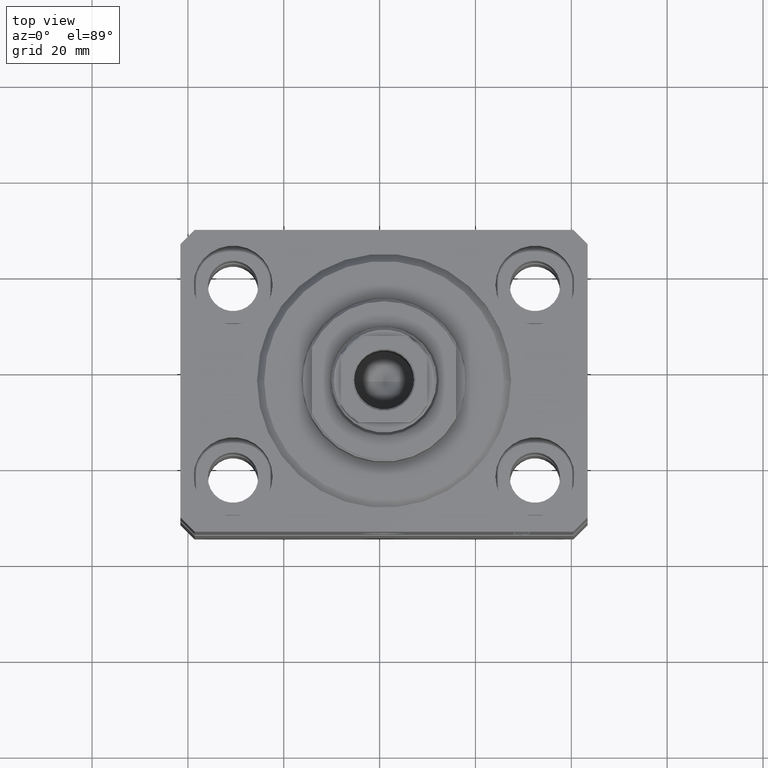
[diagram: clean part render]
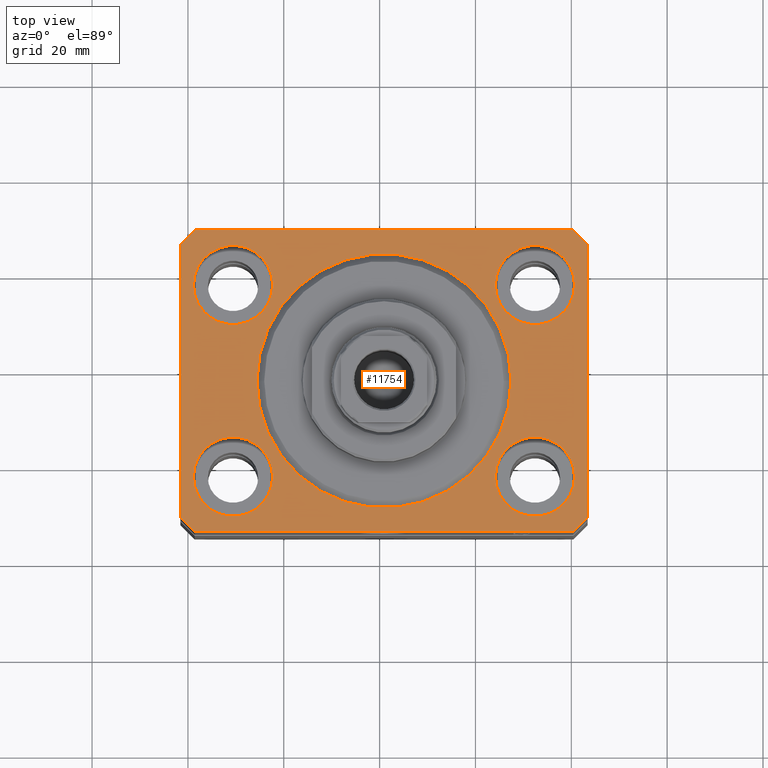
[diagram: same view with one face highlighted and labeled with its STEP entity id]
A machine part, top view. The second image highlights one B-rep face of the part: STEP entity #11754.
In plain terms, the highlighted planar face has unit normal (0, 0, 1).
Its self-contained STEP definition (entity closure, byte-faithful):
#814 = DIRECTION ( 'NONE',  ( 0.000000000000000000, 0.000000000000000000, 1.000000000000000000 ) ) ;
#1110 = EDGE_CURVE ( 'NONE', #10541, #24823, #32324, .T. ) ;
#1114 = LINE ( 'NONE', #18766, #34211 ) ;
#1254 = DIRECTION ( 'NONE',  ( -0.7071067811865471286, -0.7071067811865479058, 0.000000000000000000 ) ) ;
#1893 = VECTOR ( 'NONE', #24680, 1000.000000000000000 ) ;
#1946 = ORIENTED_EDGE ( 'NONE', *, *, #31825, .F. ) ;
#2103 = ORIENTED_EDGE ( 'NONE', *, *, #34626, .F. ) ;
#2355 = AXIS2_PLACEMENT_3D ( 'NONE', #2739, #41241, #9852 ) ;
#2627 = CARTESIAN_POINT ( 'NONE',  ( 0.000000000000000000, 0.000000000000000000, 0.000000000000000000 ) ) ;
#2739 = CARTESIAN_POINT ( 'NONE',  ( 31.50000000000000000, 20.00000000000001066, 0.000000000000000000 ) ) ;
#2802 = VERTEX_POINT ( 'NONE', #14122 ) ;
#2842 = FACE_BOUND ( 'NONE', #37525, .T. ) ;
#2986 = CARTESIAN_POINT ( 'NONE',  ( -26.50000000000000355, 3.245314017740486554E-15, 0.000000000000000000 ) ) ;
#3326 = CARTESIAN_POINT ( 'NONE',  ( -42.50000000000000000, 28.50000000000000000, 0.000000000000000000 ) ) ;
#3393 = DIRECTION ( 'NONE',  ( 0.000000000000000000, 0.000000000000000000, 1.000000000000000000 ) ) ;
#3944 = CIRCLE ( 'NONE', #27363, 8.249999999999992895 ) ;
#4259 = VECTOR ( 'NONE', #14150, 1000.000000000000000 ) ;
#4262 = ORIENTED_EDGE ( 'NONE', *, *, #15636, .T. ) ;
#4693 = LINE ( 'NONE', #19118, #17879 ) ;
#4897 = ORIENTED_EDGE ( 'NONE', *, *, #34953, .F. ) ;
#5286 = ORIENTED_EDGE ( 'NONE', *, *, #20930, .T. ) ;
#5532 = ORIENTED_EDGE ( 'NONE', *, *, #17829, .F. ) ;
#5861 = FACE_OUTER_BOUND ( 'NONE', #43966, .T. ) ;
#5921 = VERTEX_POINT ( 'NONE', #31224 ) ;
#6082 = DIRECTION ( 'NONE',  ( 0.000000000000000000, 0.000000000000000000, 1.000000000000000000 ) ) ;
#6247 = ORIENTED_EDGE ( 'NONE', *, *, #1110, .F. ) ;
#6741 = FACE_BOUND ( 'NONE', #36786, .T. ) ;
#6872 = DIRECTION ( 'NONE',  ( 1.000000000000000000, 0.000000000000000000, 0.000000000000000000 ) ) ;
#6938 = EDGE_CURVE ( 'NONE', #10147, #26476, #4693, .T. ) ;
#7155 = CARTESIAN_POINT ( 'NONE',  ( -39.50000000000000711, 31.50000000000000000, 0.000000000000000000 ) ) ;
#7279 = CARTESIAN_POINT ( 'NONE',  ( -42.50000000000000000, 28.50000000000000000, 0.000000000000000000 ) ) ;
#7483 = CARTESIAN_POINT ( 'NONE',  ( -31.50000000000000000, 20.00000000000000000, 0.000000000000000000 ) ) ;
#7600 = EDGE_CURVE ( 'NONE', #15362, #22224, #41859, .T. ) ;
#7964 = DIRECTION ( 'NONE',  ( 1.000000000000000000, 0.000000000000000000, 0.000000000000000000 ) ) ;
#8641 = CARTESIAN_POINT ( 'NONE',  ( 39.50000000000000711, -31.50000000000000000, 0.000000000000000000 ) ) ;
#8849 = DIRECTION ( 'NONE',  ( 1.000000000000000000, 0.000000000000000000, 0.000000000000000000 ) ) ;
#8945 = ORIENTED_EDGE ( 'NONE', *, *, #31480, .F. ) ;
#9163 = CARTESIAN_POINT ( 'NONE',  ( -23.25000000000000000, -20.00000000000000000, 0.000000000000000000 ) ) ;
#9327 = EDGE_LOOP ( 'NONE', ( #15597, #19355 ) ) ;
#9614 = DIRECTION ( 'NONE',  ( 0.000000000000000000, 0.000000000000000000, 1.000000000000000000 ) ) ;
#9667 = VECTOR ( 'NONE', #45017, 1000.000000000000000 ) ;
#9840 = DIRECTION ( 'NONE',  ( 1.000000000000000000, 0.000000000000000000, 0.000000000000000000 ) ) ;
#9852 = DIRECTION ( 'NONE',  ( 1.000000000000000000, 0.000000000000000000, 0.000000000000000000 ) ) ;
#9943 = LINE ( 'NONE', #45252, #9667 ) ;
#10147 = VERTEX_POINT ( 'NONE', #7155 ) ;
#10459 = DIRECTION ( 'NONE',  ( 0.7071067811865471286, -0.7071067811865479058, 0.000000000000000000 ) ) ;
#10541 = VERTEX_POINT ( 'NONE', #35717 ) ;
#10722 = CARTESIAN_POINT ( 'NONE',  ( -39.50000000000000711, -31.50000000000000000, 0.000000000000000000 ) ) ;
#11492 = CIRCLE ( 'NONE', #35613, 8.249999999999992895 ) ;
#11744 = DIRECTION ( 'NONE',  ( 0.000000000000000000, 0.000000000000000000, 1.000000000000000000 ) ) ;
#11754 = ADVANCED_FACE ( 'NONE', ( #6741, #23694, #2842, #16387, #44806, #5861 ), #30119, .T. ) ;
#11956 = DIRECTION ( 'NONE',  ( 0.000000000000000000, 0.000000000000000000, 1.000000000000000000 ) ) ;
#12245 = CIRCLE ( 'NONE', #31962, 26.50000000000000355 ) ;
#12486 = CARTESIAN_POINT ( 'NONE',  ( -31.50000000000000000, 20.00000000000000000, 0.000000000000000000 ) ) ;
#12906 = EDGE_CURVE ( 'NONE', #2802, #31511, #18039, .T. ) ;
#13199 = DIRECTION ( 'NONE',  ( 0.7071067811865483499, 0.7071067811865466846, 0.000000000000000000 ) ) ;
#13233 = VERTEX_POINT ( 'NONE', #35094 ) ;
#13294 = DIRECTION ( 'NONE',  ( 0.000000000000000000, 0.000000000000000000, 1.000000000000000000 ) ) ;
#14122 = CARTESIAN_POINT ( 'NONE',  ( -39.75000000000000000, 20.00000000000000000, 0.000000000000000000 ) ) ;
#14150 = DIRECTION ( 'NONE',  ( 0.000000000000000000, -1.000000000000000000, 0.000000000000000000 ) ) ;
#14169 = CARTESIAN_POINT ( 'NONE',  ( 31.50000000000000000, -20.00000000000000000, 0.000000000000000000 ) ) ;
#14516 = VERTEX_POINT ( 'NONE', #28392 ) ;
#14915 = ORIENTED_EDGE ( 'NONE', *, *, #38937, .T. ) ;
#14939 = ORIENTED_EDGE ( 'NONE', *, *, #39939, .F. ) ;
#15046 = DIRECTION ( 'NONE',  ( 1.000000000000000000, 0.000000000000000000, 0.000000000000000000 ) ) ;
#15092 = EDGE_CURVE ( 'NONE', #31511, #2802, #24641, .T. ) ;
#15362 = VERTEX_POINT ( 'NONE', #36190 ) ;
#15594 = AXIS2_PLACEMENT_3D ( 'NONE', #26246, #40241, #8849 ) ;
#15597 = ORIENTED_EDGE ( 'NONE', *, *, #15092, .F. ) ;
#15636 = EDGE_CURVE ( 'NONE', #22224, #5921, #42128, .T. ) ;
#15967 = CARTESIAN_POINT ( 'NONE',  ( -23.25000000000000000, 20.00000000000000000, 0.000000000000000000 ) ) ;
#16145 = CARTESIAN_POINT ( 'NONE',  ( -39.50000000000000711, -31.50000000000000000, 0.000000000000000000 ) ) ;
#16387 = FACE_BOUND ( 'NONE', #9327, .T. ) ;
#16630 = LINE ( 'NONE', #8641, #30535 ) ;
#16742 = CARTESIAN_POINT ( 'NONE',  ( 39.74999999999999289, 20.00000000000001066, 0.000000000000000000 ) ) ;
#17668 = EDGE_CURVE ( 'NONE', #22681, #22830, #12245, .T. ) ;
#17753 = CIRCLE ( 'NONE', #40446, 8.250000000000000000 ) ;
#17818 = CIRCLE ( 'NONE', #23677, 26.50000000000000355 ) ;
#17829 = EDGE_CURVE ( 'NONE', #39832, #35092, #11492, .T. ) ;
#17879 = VECTOR ( 'NONE', #1254, 1000.000000000000000 ) ;
#18039 = CIRCLE ( 'NONE', #41487, 8.250000000000000000 ) ;
#18252 = DIRECTION ( 'NONE',  ( 0.000000000000000000, 0.000000000000000000, 1.000000000000000000 ) ) ;
#18582 = CARTESIAN_POINT ( 'NONE',  ( 23.25000000000000355, -20.00000000000000000, 0.000000000000000000 ) ) ;
#18766 = CARTESIAN_POINT ( 'NONE',  ( 42.50000000000051870, 28.49999999999995381, 0.000000000000000000 ) ) ;
#18946 = EDGE_CURVE ( 'NONE', #5921, #34298, #16630, .T. ) ;
#19118 = CARTESIAN_POINT ( 'NONE',  ( -39.50000000000000711, 31.50000000000000000, 0.000000000000000000 ) ) ;
#19355 = ORIENTED_EDGE ( 'NONE', *, *, #12906, .F. ) ;
#19391 = EDGE_CURVE ( 'NONE', #25956, #13233, #1114, .T. ) ;
#20090 = CIRCLE ( 'NONE', #31025, 8.250000000000000000 ) ;
#20930 = EDGE_CURVE ( 'NONE', #26476, #15362, #45127, .T. ) ;
#21816 = CARTESIAN_POINT ( 'NONE',  ( 39.74999999999999289, -20.00000000000000000, 0.000000000000000000 ) ) ;
#21941 = ORIENTED_EDGE ( 'NONE', *, *, #19391, .T. ) ;
#22224 = VERTEX_POINT ( 'NONE', #16145 ) ;
#22478 = DIRECTION ( 'NONE',  ( 1.000000000000000000, 0.000000000000000000, 0.000000000000000000 ) ) ;
#22681 = VERTEX_POINT ( 'NONE', #2986 ) ;
#22830 = VERTEX_POINT ( 'NONE', #28619 ) ;
#22892 = VERTEX_POINT ( 'NONE', #9163 ) ;
#23606 = CARTESIAN_POINT ( 'NONE',  ( 42.50000000000000711, -28.50000000000000355, 0.000000000000000000 ) ) ;
#23677 = AXIS2_PLACEMENT_3D ( 'NONE', #35446, #18252, #7964 ) ;
#23694 = FACE_BOUND ( 'NONE', #31957, .T. ) ;
#24192 = CARTESIAN_POINT ( 'NONE',  ( -42.50000000000000000, -28.50000000000000000, 0.000000000000000000 ) ) ;
#24358 = ORIENTED_EDGE ( 'NONE', *, *, #7600, .T. ) ;
#24641 = CIRCLE ( 'NONE', #28303, 8.250000000000000000 ) ;
#24661 = CARTESIAN_POINT ( 'NONE',  ( 42.50000000000000711, -28.50000000000000355, 0.000000000000000000 ) ) ;
#24680 = DIRECTION ( 'NONE',  ( 1.000000000000000000, 0.000000000000000000, 0.000000000000000000 ) ) ;
#24823 = VERTEX_POINT ( 'NONE', #16742 ) ;
#25268 = ORIENTED_EDGE ( 'NONE', *, *, #17668, .F. ) ;
#25421 = EDGE_CURVE ( 'NONE', #13233, #10147, #9943, .T. ) ;
#25956 = VERTEX_POINT ( 'NONE', #29083 ) ;
#26246 = CARTESIAN_POINT ( 'NONE',  ( 31.50000000000000000, -20.00000000000000000, 0.000000000000000000 ) ) ;
#26432 = DIRECTION ( 'NONE',  ( 1.000000000000000000, 0.000000000000000000, 0.000000000000000000 ) ) ;
#26476 = VERTEX_POINT ( 'NONE', #3326 ) ;
#27344 = DIRECTION ( 'NONE',  ( 1.000000000000000000, 0.000000000000000000, -0.000000000000000000 ) ) ;
#27363 = AXIS2_PLACEMENT_3D ( 'NONE', #32570, #11744, #38781 ) ;
#27861 = LINE ( 'NONE', #24661, #37639 ) ;
#28303 = AXIS2_PLACEMENT_3D ( 'NONE', #12486, #43199, #26432 ) ;
#28392 = CARTESIAN_POINT ( 'NONE',  ( -39.75000000000000000, -20.00000000000000000, 0.000000000000000000 ) ) ;
#28540 = ORIENTED_EDGE ( 'NONE', *, *, #18946, .T. ) ;
#28619 = CARTESIAN_POINT ( 'NONE',  ( 26.50000000000000355, 0.000000000000000000, 0.000000000000000000 ) ) ;
#29083 = CARTESIAN_POINT ( 'NONE',  ( 42.50000000000051870, 28.49999999999995381, 0.000000000000000000 ) ) ;
#29468 = CIRCLE ( 'NONE', #15594, 8.249999999999992895 ) ;
#29569 = CARTESIAN_POINT ( 'NONE',  ( -31.50000000000000000, -20.00000000000000000, 0.000000000000000000 ) ) ;
#29993 = CARTESIAN_POINT ( 'NONE',  ( 0.000000000000000000, 0.000000000000000000, 0.000000000000000000 ) ) ;
#30119 = PLANE ( 'NONE',  #36306 ) ;
#30535 = VECTOR ( 'NONE', #13199, 1000.000000000000000 ) ;
#31025 = AXIS2_PLACEMENT_3D ( 'NONE', #29569, #11956, #22478 ) ;
#31224 = CARTESIAN_POINT ( 'NONE',  ( 39.50000000000000711, -31.50000000000000000, 0.000000000000000000 ) ) ;
#31341 = DIRECTION ( 'NONE',  ( 1.000000000000000000, 0.000000000000000000, 0.000000000000000000 ) ) ;
#31480 = EDGE_CURVE ( 'NONE', #35092, #39832, #29468, .T. ) ;
#31511 = VERTEX_POINT ( 'NONE', #15967 ) ;
#31825 = EDGE_CURVE ( 'NONE', #14516, #22892, #17753, .T. ) ;
#31957 = EDGE_LOOP ( 'NONE', ( #8945, #5532 ) ) ;
#31962 = AXIS2_PLACEMENT_3D ( 'NONE', #29993, #9614, #9840 ) ;
#32324 = CIRCLE ( 'NONE', #2355, 8.249999999999992895 ) ;
#32570 = CARTESIAN_POINT ( 'NONE',  ( 31.50000000000000000, 20.00000000000001066, 0.000000000000000000 ) ) ;
#32732 = DIRECTION ( 'NONE',  ( -0.7071067811865356934, 0.7071067811865594521, 0.000000000000000000 ) ) ;
#33983 = VECTOR ( 'NONE', #10459, 1000.000000000000000 ) ;
#34211 = VECTOR ( 'NONE', #32732, 1000.000000000000114 ) ;
#34298 = VERTEX_POINT ( 'NONE', #23606 ) ;
#34532 = DIRECTION ( 'NONE',  ( 8.886653596232072440E-15, 1.000000000000000000, 0.000000000000000000 ) ) ;
#34626 = EDGE_CURVE ( 'NONE', #22830, #22681, #17818, .T. ) ;
#34953 = EDGE_CURVE ( 'NONE', #24823, #10541, #3944, .T. ) ;
#35092 = VERTEX_POINT ( 'NONE', #21816 ) ;
#35094 = CARTESIAN_POINT ( 'NONE',  ( 39.50000000000056843, 31.50000000000000000, 0.000000000000000000 ) ) ;
#35188 = ORIENTED_EDGE ( 'NONE', *, *, #25421, .T. ) ;
#35446 = CARTESIAN_POINT ( 'NONE',  ( 0.000000000000000000, 0.000000000000000000, 0.000000000000000000 ) ) ;
#35613 = AXIS2_PLACEMENT_3D ( 'NONE', #14169, #3393, #31341 ) ;
#35717 = CARTESIAN_POINT ( 'NONE',  ( 23.25000000000000355, 20.00000000000001066, 0.000000000000000000 ) ) ;
#36190 = CARTESIAN_POINT ( 'NONE',  ( -42.50000000000000000, -28.50000000000000000, 0.000000000000000000 ) ) ;
#36286 = ORIENTED_EDGE ( 'NONE', *, *, #6938, .T. ) ;
#36306 = AXIS2_PLACEMENT_3D ( 'NONE', #2627, #6082, #27344 ) ;
#36786 = EDGE_LOOP ( 'NONE', ( #14939, #1946 ) ) ;
#37525 = EDGE_LOOP ( 'NONE', ( #4897, #6247 ) ) ;
#37639 = VECTOR ( 'NONE', #34532, 1000.000000000000000 ) ;
#38781 = DIRECTION ( 'NONE',  ( 1.000000000000000000, 0.000000000000000000, 0.000000000000000000 ) ) ;
#38937 = EDGE_CURVE ( 'NONE', #34298, #25956, #27861, .T. ) ;
#39832 = VERTEX_POINT ( 'NONE', #18582 ) ;
#39939 = EDGE_CURVE ( 'NONE', #22892, #14516, #20090, .T. ) ;
#40241 = DIRECTION ( 'NONE',  ( 0.000000000000000000, 0.000000000000000000, 1.000000000000000000 ) ) ;
#40446 = AXIS2_PLACEMENT_3D ( 'NONE', #44709, #13294, #6872 ) ;
#41241 = DIRECTION ( 'NONE',  ( 0.000000000000000000, 0.000000000000000000, 1.000000000000000000 ) ) ;
#41487 = AXIS2_PLACEMENT_3D ( 'NONE', #7483, #814, #15046 ) ;
#41859 = LINE ( 'NONE', #24192, #33983 ) ;
#42128 = LINE ( 'NONE', #10722, #1893 ) ;
#42326 = EDGE_LOOP ( 'NONE', ( #2103, #25268 ) ) ;
#43199 = DIRECTION ( 'NONE',  ( 0.000000000000000000, 0.000000000000000000, 1.000000000000000000 ) ) ;
#43966 = EDGE_LOOP ( 'NONE', ( #35188, #36286, #5286, #24358, #4262, #28540, #14915, #21941 ) ) ;
#44709 = CARTESIAN_POINT ( 'NONE',  ( -31.50000000000000000, -20.00000000000000000, 0.000000000000000000 ) ) ;
#44806 = FACE_BOUND ( 'NONE', #42326, .T. ) ;
#45017 = DIRECTION ( 'NONE',  ( -1.000000000000000000, 0.000000000000000000, 0.000000000000000000 ) ) ;
#45127 = LINE ( 'NONE', #7279, #4259 ) ;
#45252 = CARTESIAN_POINT ( 'NONE',  ( 39.50000000000056843, 31.50000000000000000, 0.000000000000000000 ) ) ;